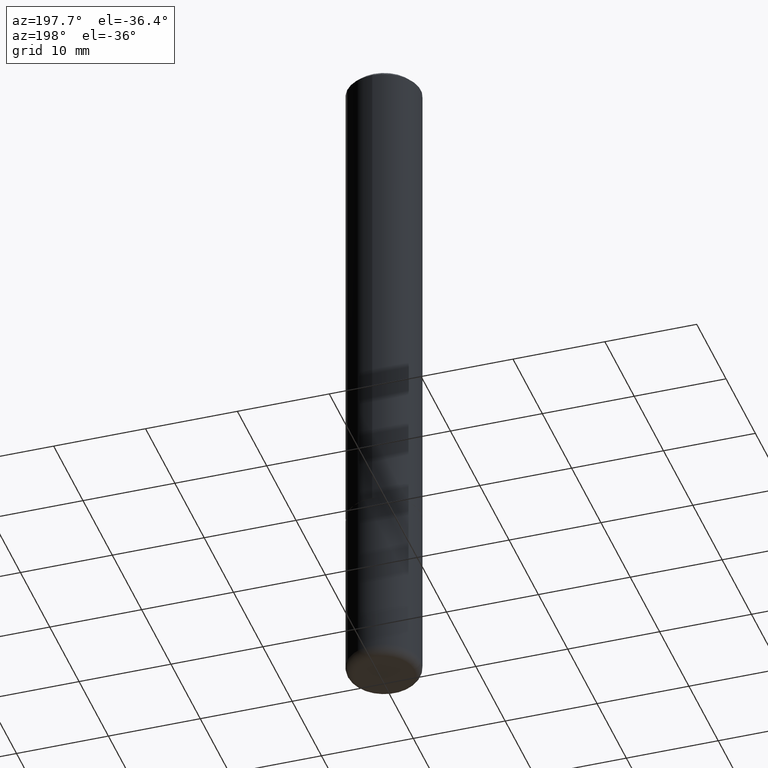
[diagram: clean part render]
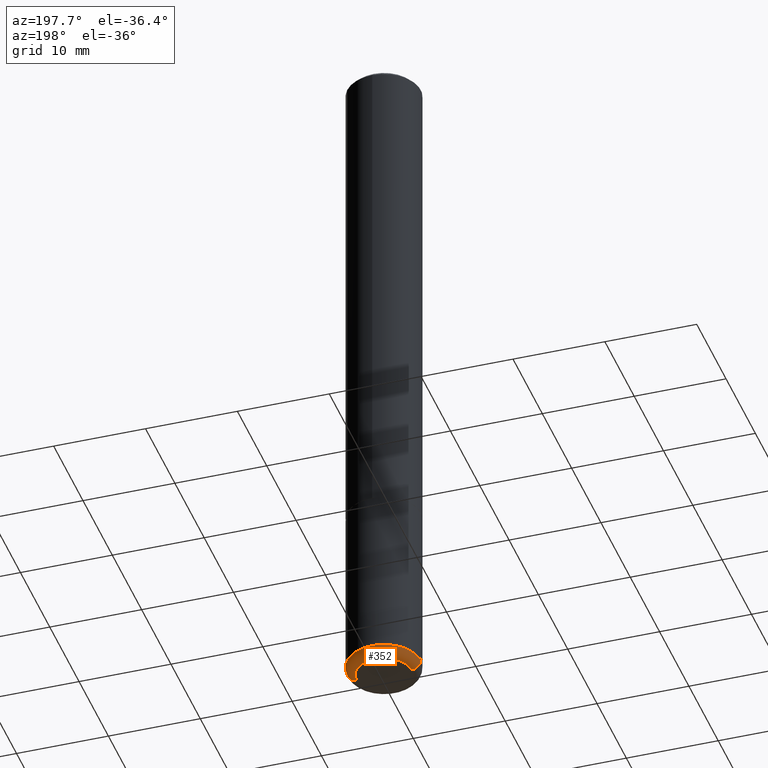
[diagram: same view with one face highlighted and labeled with its STEP entity id]
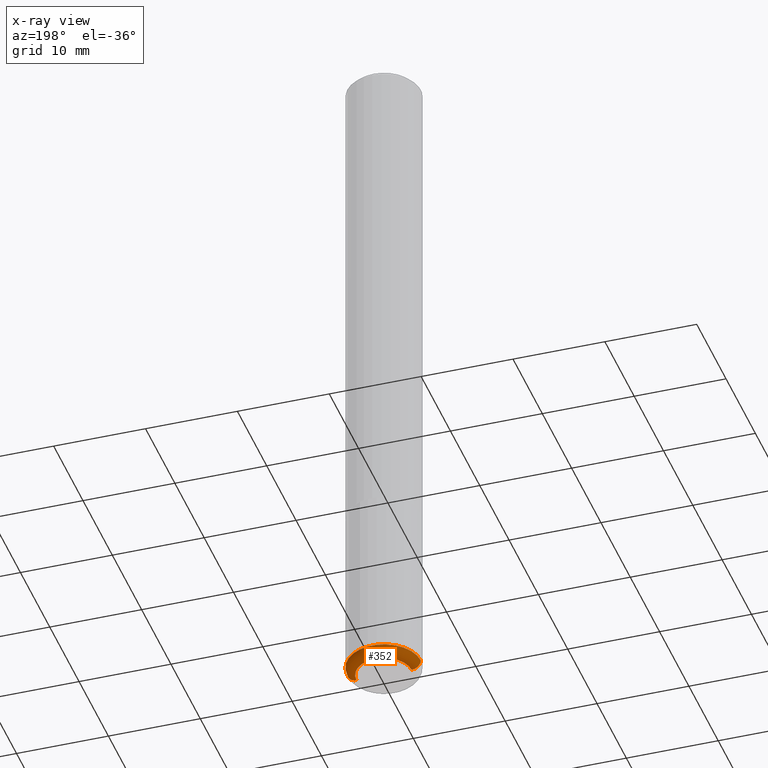
[diagram: x-ray of the same camera — body ghosted, the highlighted face saturated]
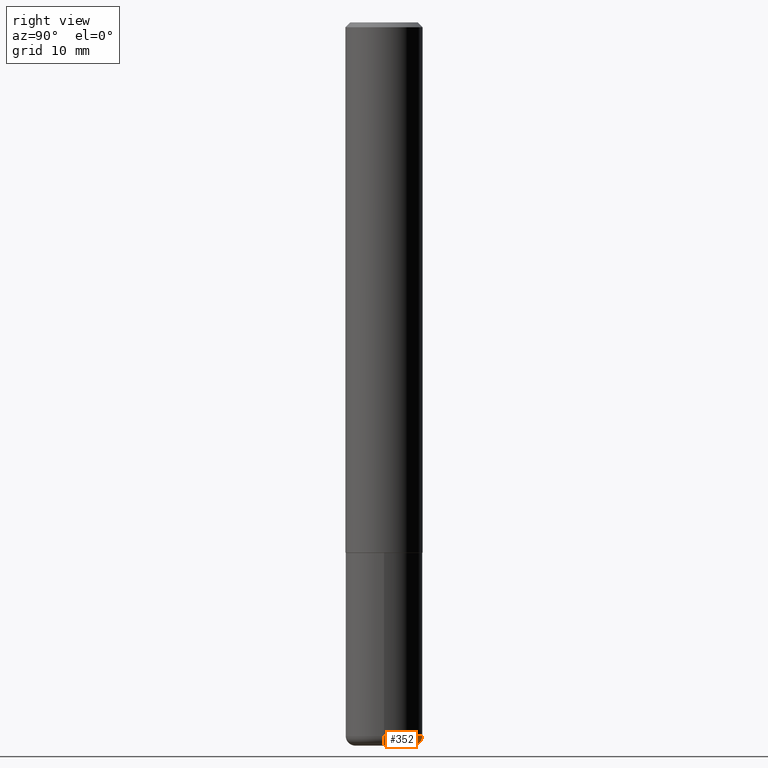
[diagram: same view with one face highlighted and labeled with its STEP entity id]
A machine part, auxiliary view. The second image highlights one B-rep face of the part: STEP entity #352.
The next image is the same camera in x-ray: the body ghosted, the highlighted face saturated — about 0% of this face is hidden behind the body in this view.
A second angle (right view) of the same face is appended — the face is thin or edge-on in the first view.
In plain terms, the highlighted toroidal blend (fillet) surface has major radius 2.9997 mm and minor (blend) radius 1.0008 mm.
Its self-contained STEP definition (entity closure, byte-faithful):
#1 = DIRECTION ( 'NONE',  ( -2.445468806185136597E-29, 3.491481338843145583E-15, 1.000000000000000000 ) ) ;
#5 = CIRCLE ( 'NONE', #236, 0.1575000000000000011 ) ;
#15 = CARTESIAN_POINT ( 'NONE',  ( -0.1180999999999999966, -9.332930761652941905E-15, -2.913399999999999768 ) ) ;
#23 = CARTESIAN_POINT ( 'NONE',  ( 0.1180999999999999966, -1.099676962482036915E-14, -2.913399999999999768 ) ) ;
#32 = DIRECTION ( 'NONE',  ( 1.000000000000000000, -6.982962677686261977E-15, 0.000000000000000000 ) ) ;
#38 = CARTESIAN_POINT ( 'NONE',  ( 7.220980290903470182E-29, -1.030964609733603853E-14, -2.952799999999999869 ) ) ;
#40 = EDGE_LOOP ( 'NONE', ( #417, #58, #94, #134 ) ) ;
#46 = CARTESIAN_POINT ( 'NONE',  ( 0.1575000000000000289, -1.127189835432120758E-14, -2.913399999999999768 ) ) ;
#58 = ORIENTED_EDGE ( 'NONE', *, *, #269, .T. ) ;
#69 = CIRCLE ( 'NONE', #124, 0.03940000000000005997 ) ;
#78 = CIRCLE ( 'NONE', #396, 0.03940000000000005997 ) ;
#94 = ORIENTED_EDGE ( 'NONE', *, *, #125, .F. ) ;
#116 = CARTESIAN_POINT ( 'NONE',  ( 7.124628819939776708E-29, -1.017208173258561931E-14, -2.913399999999999768 ) ) ;
#124 = AXIS2_PLACEMENT_3D ( 'NONE', #23, #137, #215 ) ;
#125 = EDGE_CURVE ( 'NONE', #268, #191, #5, .T. ) ;
#134 = ORIENTED_EDGE ( 'NONE', *, *, #408, .F. ) ;
#137 = DIRECTION ( 'NONE',  ( -6.982962677686266711E-15, -1.000000000000000000, 3.491481338843145583E-15 ) ) ;
#138 = DIRECTION ( 'NONE',  ( 7.105427357601001859E-15, 1.000000000000000000, -3.491481338843145583E-15 ) ) ;
#145 = TOROIDAL_SURFACE ( 'NONE', #216, 0.1180999999999999966, 0.03940000000000005997 ) ;
#159 = CIRCLE ( 'NONE', #357, 0.1180999999999999966 ) ;
#162 = DIRECTION ( 'NONE',  ( -2.445468806185136597E-29, 3.491481338843145583E-15, 1.000000000000000000 ) ) ;
#191 = VERTEX_POINT ( 'NONE', #256 ) ;
#215 = DIRECTION ( 'NONE',  ( 1.000000000000000000, -6.982962677686267499E-15, 0.000000000000000000 ) ) ;
#216 = AXIS2_PLACEMENT_3D ( 'NONE', #116, #243, #376 ) ;
#218 = VERTEX_POINT ( 'NONE', #339 ) ;
#236 = AXIS2_PLACEMENT_3D ( 'NONE', #265, #1, #32 ) ;
#243 = DIRECTION ( 'NONE',  ( -2.445468806185136597E-29, 3.491481338843145583E-15, 1.000000000000000000 ) ) ;
#256 = CARTESIAN_POINT ( 'NONE',  ( -0.1575000000000000289, -9.052976923763463288E-15, -2.913399999999999768 ) ) ;
#260 = EDGE_CURVE ( 'NONE', #218, #359, #159, .T. ) ;
#265 = CARTESIAN_POINT ( 'NONE',  ( 7.124628819939776708E-29, -1.017208173258561931E-14, -2.913399999999999768 ) ) ;
#266 = DIRECTION ( 'NONE',  ( 1.000000000000000000, -6.982962677686273021E-15, 0.000000000000000000 ) ) ;
#268 = VERTEX_POINT ( 'NONE', #46 ) ;
#269 = EDGE_CURVE ( 'NONE', #359, #191, #78, .T. ) ;
#278 = CARTESIAN_POINT ( 'NONE',  ( -0.1180999999999999966, -9.261736025083411415E-15, -2.952799999999999869 ) ) ;
#279 = DIRECTION ( 'NONE',  ( -1.000000000000000000, 7.105427357601014480E-15, 0.000000000000000000 ) ) ;
#339 = CARTESIAN_POINT ( 'NONE',  ( 0.1180999999999999966, -1.113433398957078679E-14, -2.952799999999999869 ) ) ;
#352 = ADVANCED_FACE ( 'NONE', ( #402 ), #145, .T. ) ;
#357 = AXIS2_PLACEMENT_3D ( 'NONE', #38, #162, #266 ) ;
#359 = VERTEX_POINT ( 'NONE', #278 ) ;
#376 = DIRECTION ( 'NONE',  ( 1.000000000000000000, -6.982962677686271444E-15, 4.883557194083114583E-29 ) ) ;
#396 = AXIS2_PLACEMENT_3D ( 'NONE', #15, #138, #279 ) ;
#402 = FACE_OUTER_BOUND ( 'NONE', #40, .T. ) ;
#408 = EDGE_CURVE ( 'NONE', #218, #268, #69, .T. ) ;
#417 = ORIENTED_EDGE ( 'NONE', *, *, #260, .T. ) ;